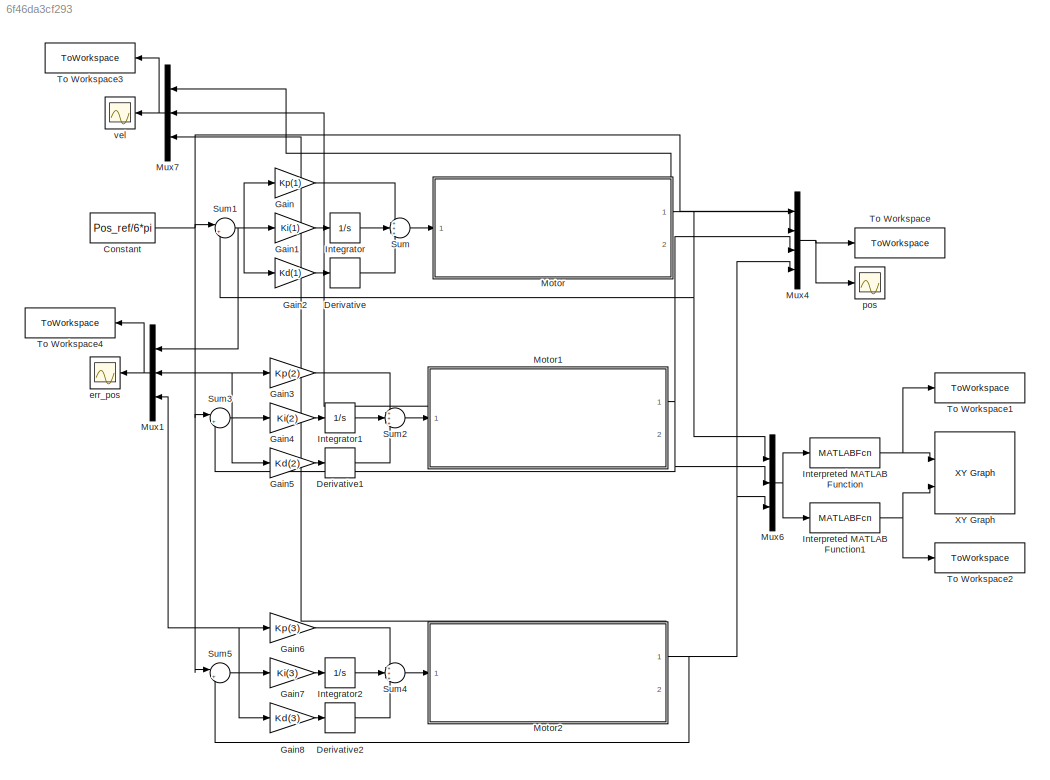
MODEL slx_6f46da3cf293
KIND model
CONFIG AbsTol = auto
CONFIG EnableMultiTasking = off
CONFIG FixedStep = auto
CONFIG MaxStep = auto
CONFIG MinStep = auto
CONFIG RelTol = 1e-3
CONFIG SampleTimeConstraint = Unconstrained
CONFIG SolverName = VariableStepAuto
CONFIG StartTime = 0.0
CONFIG StopTime = 10.0
BLOCK [Constant] Constant
  Value = Pos_ref/6*pi
BLOCK [Derivative] Derivative
BLOCK [Derivative] Derivative1
BLOCK [Derivative] Derivative2
BLOCK [Gain] Gain
  Gain = Kp(1)
BLOCK [Gain] Gain1
  Gain = Ki(1)
BLOCK [Gain] Gain2
  Gain = Kd(1)
BLOCK [Gain] Gain3
  Gain = Kp(2)
BLOCK [Gain] Gain4
  Gain = Ki(2)
BLOCK [Gain] Gain5
  Gain = Kd(2)
BLOCK [Gain] Gain6
  Gain = Kp(3)
BLOCK [Gain] Gain7
  Gain = Ki(3)
BLOCK [Gain] Gain8
  Gain = Kd(3)
BLOCK [Integrator] Integrator
  Ports = [1, 1]
BLOCK [Integrator] Integrator1
  Ports = [1, 1]
BLOCK [Integrator] Integrator2
  Ports = [1, 1]
BLOCK [MATLABFcn] Interpreted MATLAB Function
  MATLABFcn = Lengan*cos(u)
  Ports = [1, 1]
BLOCK [MATLABFcn] Interpreted MATLAB Function1
  MATLABFcn = Lengan*sin(u)
  Ports = [1, 1]
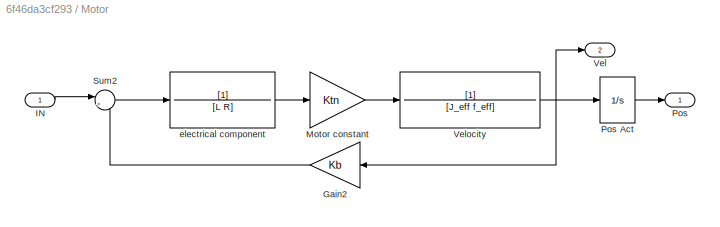
BLOCK [SubSystem] Motor
  PortSchema = {"entries":[{"content":{"sides":[{"content":{"connectorIds":["In1"]},"type":"ConnectorPlacement.EquallySpacedRectSide","uuid":"5d592437-2b24-436e-b414-64ae35424ef6"},{"content":{"connectorIds":["Out1"],"side":"RIGHT"},"type":"ConnectorPlacement.EquallySpacedRectSide","uuid":"34c7363f-afa0-43a5-b74e-2e83f8bd64af"},{"content":{"connectorIds":["Out2"],"side":"TOP"},"type":"ConnectorPlacement.EquallyS...<+372ch>  <repeated x3 — deduplicated; at blocks: Motor, Motor1, Motor2>
  Ports = [1, 2]
BLOCK [Gain] Motor/Gain2
  Gain = Kb
BLOCK [Inport] Motor/IN
  IconDisplay = Signal name
BLOCK [Gain] Motor/Motor constant
  Gain = Ktn
BLOCK [Outport] Motor/Pos
  IconDisplay = Port number and signal name
BLOCK [Integrator] Motor/Pos Act
  Ports = [1, 1]
BLOCK [Sum] Motor/Sum2
  Inputs = |+-
  Ports = [2, 1]
BLOCK [Outport] Motor/Vel
  Port = 2
BLOCK [TransferFcn] Motor/Velocity
  Denominator = [J_eff f_eff]
BLOCK [TransferFcn] Motor/electrical component
  Denominator = [L R]
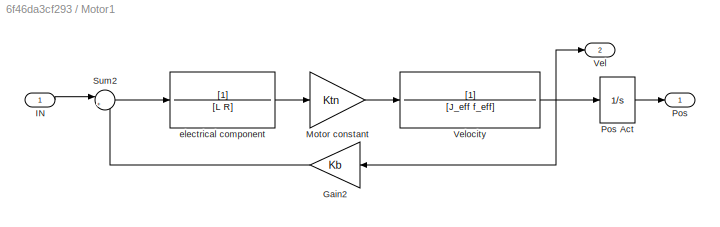
BLOCK [SubSystem] Motor1
  Ports = [1, 2]
BLOCK [Gain] Motor1/Gain2
  Gain = Kb
BLOCK [Inport] Motor1/IN
  IconDisplay = Signal name
BLOCK [Gain] Motor1/Motor constant
  Gain = Ktn
BLOCK [Outport] Motor1/Pos
  IconDisplay = Port number and signal name
BLOCK [Integrator] Motor1/Pos Act
  Ports = [1, 1]
BLOCK [Sum] Motor1/Sum2
  Inputs = |+-
  Ports = [2, 1]
BLOCK [Outport] Motor1/Vel
  Port = 2
BLOCK [TransferFcn] Motor1/Velocity
  Denominator = [J_eff f_eff]
BLOCK [TransferFcn] Motor1/electrical component
  Denominator = [L R]
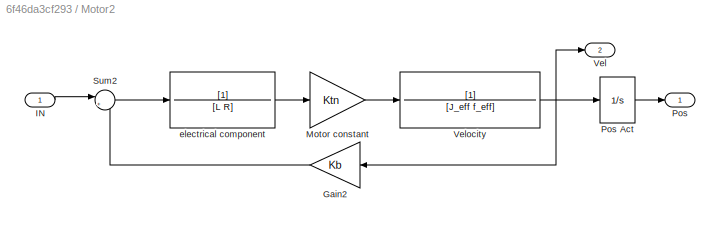
BLOCK [SubSystem] Motor2
  Ports = [1, 2]
BLOCK [Gain] Motor2/Gain2
  Gain = Kb
BLOCK [Inport] Motor2/IN
  IconDisplay = Signal name
BLOCK [Gain] Motor2/Motor constant
  Gain = Ktn
BLOCK [Outport] Motor2/Pos
  IconDisplay = Port number and signal name
BLOCK [Integrator] Motor2/Pos Act
  Ports = [1, 1]
BLOCK [Sum] Motor2/Sum2
  Inputs = |+-
  Ports = [2, 1]
BLOCK [Outport] Motor2/Vel
  Port = 2
BLOCK [TransferFcn] Motor2/Velocity
  Denominator = [J_eff f_eff]
BLOCK [TransferFcn] Motor2/electrical component
  Denominator = [L R]
BLOCK [Mux] Mux1
  DisplayOption = bar
  Inputs = 3
  Ports = [3, 1]
BLOCK [Mux] Mux4
  DisplayOption = bar
  Ports = [4, 1]
BLOCK [Mux] Mux6
  DisplayOption = bar
  Inputs = 3
  Ports = [3, 1]
BLOCK [Mux] Mux7
  DisplayOption = bar
  Inputs = 3
  Ports = [3, 1]
BLOCK [Sum] Sum
  Inputs = +++
  Ports = [3, 1]
BLOCK [Sum] Sum1
  Inputs = |+-
  Ports = [2, 1]
BLOCK [Sum] Sum2
  Inputs = +++
  Ports = [3, 1]
BLOCK [Sum] Sum3
  Inputs = |+-
  Ports = [2, 1]
BLOCK [Sum] Sum4
  Inputs = +++
  Ports = [3, 1]
BLOCK [Sum] Sum5
  Inputs = |+-
  Ports = [2, 1]
BLOCK [ToWorkspace] To Workspace
  FixptAsFi = on
  MaxDataPoints = inf
  Ports = [1]
  SampleTime = -1
  SaveFormat = Timeseries
  VariableName = posact
BLOCK [ToWorkspace] To Workspace1
  FixptAsFi = on
  MaxDataPoints = inf
  Ports = [1]
  SampleTime = -1
  Save2DSignal = 2-D array (concatenate along first dimension)
  VariableName = posx
BLOCK [ToWorkspace] To Workspace2
  FixptAsFi = on
  MaxDataPoints = inf
  Ports = [1]
  SampleTime = -1
  Save2DSignal = 2-D array (concatenate along first dimension)
  VariableName = posy
BLOCK [ToWorkspace] To Workspace3
  FixptAsFi = on
  MaxDataPoints = inf
  Ports = [1]
  SampleTime = -1
  SaveFormat = Timeseries
  VariableName = vel
BLOCK [ToWorkspace] To Workspace4
  FixptAsFi = on
  MaxDataPoints = inf
  Ports = [1]
  SampleTime = -1
  SaveFormat = Timeseries
  VariableName = err_pos
BLOCK [Reference] XY Graph  REF=simulink/Sinks/XY Graph
  Ports = [2]
  SourceBlock = simulink/Sinks/XY Graph
  SourceType = XY scope.
BLOCK [Scope] err_pos
  Floating = off
  NumInputPorts = 1
  Ports = [1]
  ScopeSpecificationString = Simulink.scopes.TimeScopeBlockCfg('CurrentConfiguration', extmgr.ConfigurationSet(extmgr.Configuration('Core','General UI',true),extmgr.Configuration('Core','Source UI',true),extmgr.Configuration('Sources','WiredSimulink',true,'DataLoggingVariableName','ScopeData1'),extmgr.Configuration('Visuals','Time Domain',true,'SerializedDisplays',{struct('MinYLimReal','-9.96099','MaxYLimReal','36.55071','YLa...<+1500ch>
BLOCK [Scope] pos
  Floating = off
  NumInputPorts = 1
  Ports = [1]
  ScopeSpecificationString = Simulink.scopes.TimeScopeBlockCfg('CurrentConfiguration', extmgr.ConfigurationSet(extmgr.Configuration('Core','General UI',true),extmgr.Configuration('Core','Source UI',true),extmgr.Configuration('Sources','WiredSimulink',true),extmgr.Configuration('Visuals','Time Domain',true,'SerializedDisplays',{struct('MinYLimReal','-1.03618','MaxYLimReal','3.80214','YLabelReal','','MinYLimMag','0.00000','MaxY...<+1434ch>
BLOCK [Scope] vel
  Floating = off
  NumInputPorts = 1
  Ports = [1]
  ScopeSpecificationString = Simulink.scopes.TimeScopeBlockCfg('CurrentConfiguration', extmgr.ConfigurationSet(extmgr.Configuration('Core','General UI',true),extmgr.Configuration('Core','Source UI',true),extmgr.Configuration('Sources','WiredSimulink',true,'DataLoggingVariableName','ScopeData1'),extmgr.Configuration('Visuals','Time Domain',true,'SerializedDisplays',{struct('MinYLimReal','-9.96099','MaxYLimReal','36.55071','YLa...<+1500ch>
NET Constant:1 -> Mux4:1, Sum1:1, Sum3:1, Sum5:1
LINE Derivative1:1 -> Sum2:3
LINE Derivative2:1 -> Sum4:3
LINE Derivative:1 -> Sum:3
LINE Gain1:1 -> Integrator:1
LINE Gain2:1 -> Derivative:1
LINE Gain3:1 -> Sum2:1
LINE Gain4:1 -> Integrator1:1
LINE Gain5:1 -> Derivative1:1
LINE Gain6:1 -> Sum4:1
LINE Gain7:1 -> Integrator2:1
LINE Gain8:1 -> Derivative2:1
LINE Gain:1 -> Sum:1
LINE Integrator1:1 -> Sum2:2
LINE Integrator2:1 -> Sum4:2
LINE Integrator:1 -> Sum:2
NET Interpreted MATLAB Function1:1 -> To Workspace2:1, XY Graph:2
NET Interpreted MATLAB Function:1 -> To Workspace1:1, XY Graph:1
LINE Motor/Gain2:1 -> Motor/Sum2:2
LINE Motor/IN:1 -> Motor/Sum2:1
LINE Motor/Motor constant:1 -> Motor/Velocity:1
LINE Motor/Pos Act:1 -> Motor/Pos:1
LINE Motor/Sum2:1 -> Motor/electrical component:1
NET Motor/Velocity:1 -> Motor/Gain2:1, Motor/Pos Act:1, Motor/Vel:1
LINE Motor/electrical component:1 -> Motor/Motor constant:1
LINE Motor1/Gain2:1 -> Motor1/Sum2:2
LINE Motor1/IN:1 -> Motor1/Sum2:1
LINE Motor1/Motor constant:1 -> Motor1/Velocity:1
LINE Motor1/Pos Act:1 -> Motor1/Pos:1
LINE Motor1/Sum2:1 -> Motor1/electrical component:1
NET Motor1/Velocity:1 -> Motor1/Gain2:1, Motor1/Pos Act:1, Motor1/Vel:1
LINE Motor1/electrical component:1 -> Motor1/Motor constant:1
NET Motor1:1 -> Mux4:3, Mux6:2, Sum3:2
LINE Motor1:2 -> Mux7:2
LINE Motor2/Gain2:1 -> Motor2/Sum2:2
LINE Motor2/IN:1 -> Motor2/Sum2:1
LINE Motor2/Motor constant:1 -> Motor2/Velocity:1
LINE Motor2/Pos Act:1 -> Motor2/Pos:1
LINE Motor2/Sum2:1 -> Motor2/electrical component:1
NET Motor2/Velocity:1 -> Motor2/Gain2:1, Motor2/Pos Act:1, Motor2/Vel:1
LINE Motor2/electrical component:1 -> Motor2/Motor constant:1
NET Motor2:1 -> Mux4:4, Mux6:3, Sum5:2
LINE Motor2:2 -> Mux7:3
NET Motor:1 -> Mux4:2, Mux6:1, Sum1:2
LINE Motor:2 -> Mux7:1
NET Mux1:1 -> To Workspace4:1, err_pos:1
NET Mux4:1 -> To Workspace:1, pos:1
NET Mux6:1 -> Interpreted MATLAB Function1:1, Interpreted MATLAB Function:1
NET Mux7:1 -> To Workspace3:1, vel:1
NET Sum1:1 -> Gain1:1, Gain2:1, Gain:1, Mux1:1
LINE Sum2:1 -> Motor1:1
NET Sum3:1 -> Gain3:1, Gain4:1, Gain5:1, Mux1:2
LINE Sum4:1 -> Motor2:1
NET Sum5:1 -> Gain6:1, Gain7:1, Gain8:1, Mux1:3
LINE Sum:1 -> Motor:1
note: NET lines group one-source signal fan-out (src -> all destinations, sorted); 1:1 wires keep LINE
